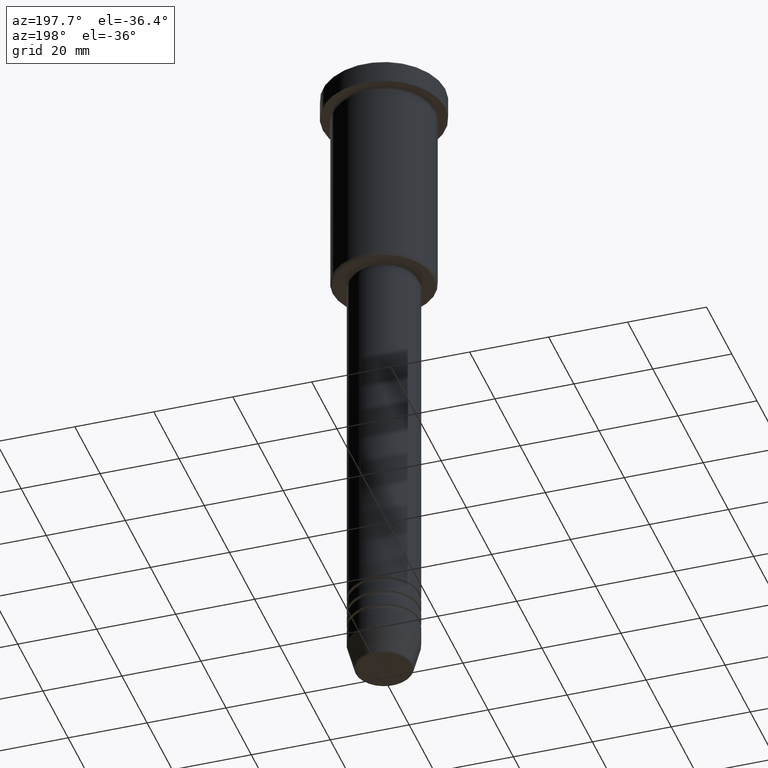
[diagram: clean part render]
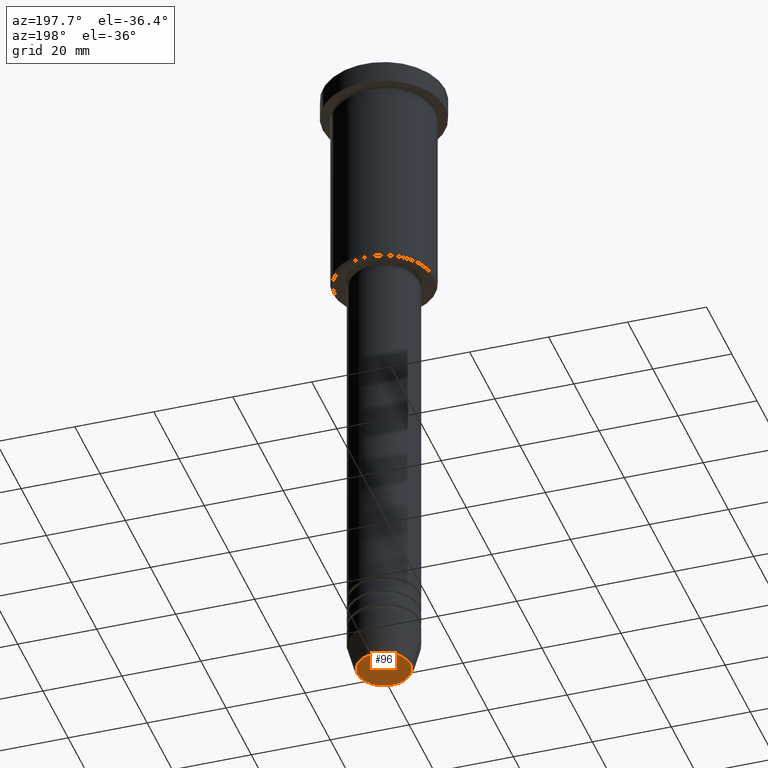
[diagram: same view with one face highlighted and labeled with its STEP entity id]
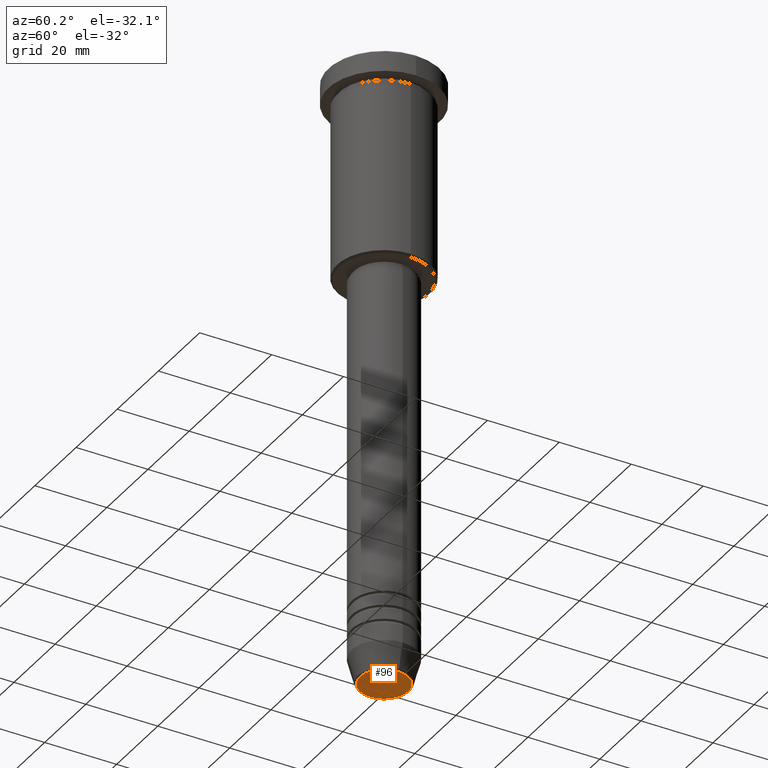
[diagram: same view with one face highlighted and labeled with its STEP entity id]
A machine part, auxiliary view. The second image highlights one B-rep face of the part: STEP entity #96.
A second angle (auxiliary view) of the same face is appended — the face is thin or edge-on in the first view.
In plain terms, the highlighted planar face has unit normal (0, -0, 1).
Its self-contained STEP definition (entity closure, byte-faithful):
#7 = AXIS2_PLACEMENT_3D ( 'NONE', #655, #641, #747 ) ;
#53 = DIRECTION ( 'NONE',  ( 1.000000000000000000, 0.000000000000000000, 0.000000000000000000 ) ) ;
#96 = ADVANCED_FACE ( 'NONE', ( #957 ), #529, .F. ) ;
#133 = VERTEX_POINT ( 'NONE', #162 ) ;
#138 = ORIENTED_EDGE ( 'NONE', *, *, #1102, .T. ) ;
#144 = CARTESIAN_POINT ( 'NONE',  ( -6.740692158992658278, 8.550696569392685681E-16, -171.0000000000000000 ) ) ;
#162 = CARTESIAN_POINT ( 'NONE',  ( 6.740692158992658278, 0.000000000000000000, -171.0000000000000000 ) ) ;
#303 = CIRCLE ( 'NONE', #970, 6.740692158992658278 ) ;
#430 = DIRECTION ( 'NONE',  ( 0.000000000000000000, -0.000000000000000000, 1.000000000000000000 ) ) ;
#472 = EDGE_LOOP ( 'NONE', ( #138, #832 ) ) ;
#529 = PLANE ( 'NONE',  #1123 ) ;
#641 = DIRECTION ( 'NONE',  ( 0.000000000000000000, 0.000000000000000000, -1.000000000000000000 ) ) ;
#655 = CARTESIAN_POINT ( 'NONE',  ( 0.000000000000000000, 0.000000000000000000, -171.0000000000000000 ) ) ;
#747 = DIRECTION ( 'NONE',  ( 1.000000000000000000, 0.000000000000000000, 0.000000000000000000 ) ) ;
#785 = VERTEX_POINT ( 'NONE', #144 ) ;
#788 = CARTESIAN_POINT ( 'NONE',  ( 0.000000000000000000, 0.000000000000000000, -171.0000000000000000 ) ) ;
#805 = EDGE_CURVE ( 'NONE', #785, #133, #303, .T. ) ;
#832 = ORIENTED_EDGE ( 'NONE', *, *, #805, .T. ) ;
#877 = DIRECTION ( 'NONE',  ( 1.000000000000000000, 0.000000000000000000, 0.000000000000000000 ) ) ;
#955 = DIRECTION ( 'NONE',  ( 0.000000000000000000, 0.000000000000000000, -1.000000000000000000 ) ) ;
#957 = FACE_OUTER_BOUND ( 'NONE', #472, .T. ) ;
#970 = AXIS2_PLACEMENT_3D ( 'NONE', #1144, #955, #53 ) ;
#1031 = CIRCLE ( 'NONE', #7, 6.740692158992658278 ) ;
#1102 = EDGE_CURVE ( 'NONE', #133, #785, #1031, .T. ) ;
#1123 = AXIS2_PLACEMENT_3D ( 'NONE', #788, #430, #877 ) ;
#1144 = CARTESIAN_POINT ( 'NONE',  ( 0.000000000000000000, 0.000000000000000000, -171.0000000000000000 ) ) ;